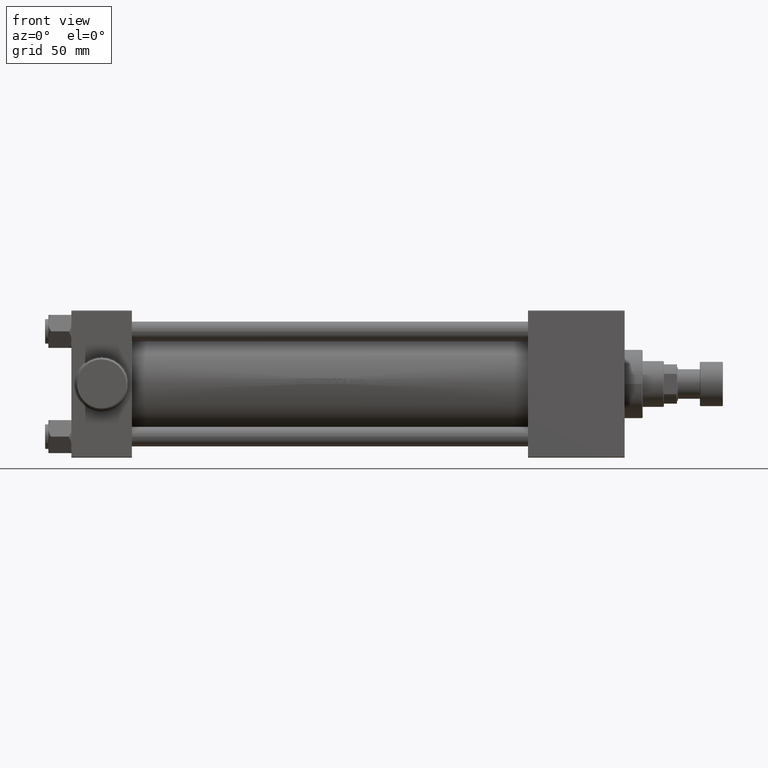
[diagram: clean part render]
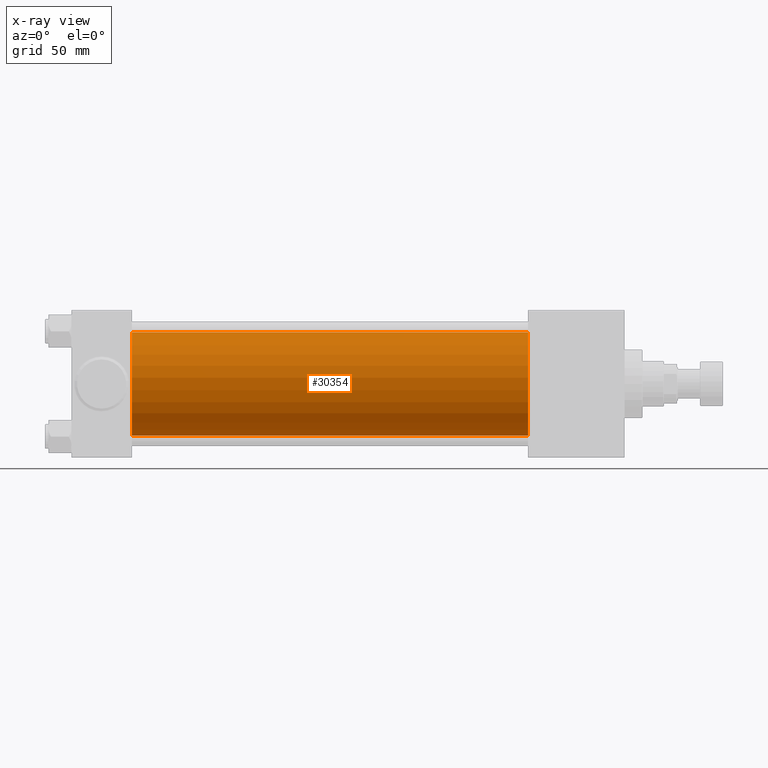
[diagram: x-ray — body ghosted, one internal face saturated and labeled with its STEP entity id]
A machine part, front view, then the same camera in x-ray: the body is ghosted and one INTERNAL B-rep face — a face not visible from any outside direction — is saturated and labeled: STEP entity #30354.
In plain terms, the highlighted cylindrical surface (partial cylindrical patch) has radius 31.5 mm, axis along (-1, -0, -0).
Its self-contained STEP definition (entity closure, byte-faithful):
#2624 = VECTOR ( 'NONE', #38403, 1000.000000000000000 ) ;
#3693 = DIRECTION ( 'NONE',  ( -1.000000000000000000, -0.000000000000000000, -0.000000000000000000 ) ) ;
#4143 = DIRECTION ( 'NONE',  ( 0.000000000000000000, 0.000000000000000000, -1.000000000000000000 ) ) ;
#4149 = DIRECTION ( 'NONE',  ( 0.000000000000000000, 0.000000000000000000, 1.000000000000000000 ) ) ;
#4294 = DIRECTION ( 'NONE',  ( 0.000000000000000000, 0.000000000000000000, -1.000000000000000000 ) ) ;
#7235 = EDGE_CURVE ( 'NONE', #17933, #11399, #39555, .T. ) ;
#7682 = CYLINDRICAL_SURFACE ( 'NONE', #45511, 31.50000000000000000 ) ;
#9329 = VERTEX_POINT ( 'NONE', #26435 ) ;
#9807 = EDGE_CURVE ( 'NONE', #9329, #11399, #15494, .T. ) ;
#10310 = VECTOR ( 'NONE', #29456, 1000.000000000000000 ) ;
#11399 = VERTEX_POINT ( 'NONE', #40673 ) ;
#11472 = LINE ( 'NONE', #32527, #10310 ) ;
#13053 = CARTESIAN_POINT ( 'NONE',  ( 278.9999999999999432, -3.469446951953614189E-15, 31.50000000000000000 ) ) ;
#14450 = EDGE_CURVE ( 'NONE', #35990, #17933, #11472, .T. ) ;
#14715 = DIRECTION ( 'NONE',  ( 1.000000000000000000, 0.000000000000000000, 0.000000000000000000 ) ) ;
#15039 = CARTESIAN_POINT ( 'NONE',  ( 278.9999999999999432, -3.469446951953614189E-15, 0.000000000000000000 ) ) ;
#15493 = CARTESIAN_POINT ( 'NONE',  ( 278.9999999999999432, -3.469446951953614189E-15, 0.000000000000000000 ) ) ;
#15494 = LINE ( 'NONE', #26610, #2624 ) ;
#17933 = VERTEX_POINT ( 'NONE', #19044 ) ;
#19044 = CARTESIAN_POINT ( 'NONE',  ( 37.00000000000000000, -3.469446951953614189E-15, 31.50000000000000000 ) ) ;
#20497 = AXIS2_PLACEMENT_3D ( 'NONE', #15493, #43851, #4143 ) ;
#25104 = ORIENTED_EDGE ( 'NONE', *, *, #9807, .T. ) ;
#25742 = EDGE_CURVE ( 'NONE', #35990, #9329, #39372, .T. ) ;
#25826 = CARTESIAN_POINT ( 'NONE',  ( 37.00000000000000000, -3.469446951953614189E-15, 0.000000000000000000 ) ) ;
#26435 = CARTESIAN_POINT ( 'NONE',  ( 278.9999999999999432, 3.881904653605483521E-16, -31.50000000000000000 ) ) ;
#26610 = CARTESIAN_POINT ( 'NONE',  ( 278.9999999999999432, 3.881904653605483521E-16, -31.50000000000000000 ) ) ;
#29456 = DIRECTION ( 'NONE',  ( -1.000000000000000000, -0.000000000000000000, -0.000000000000000000 ) ) ;
#30354 = ADVANCED_FACE ( 'NONE', ( #40085 ), #7682, .F. ) ;
#32527 = CARTESIAN_POINT ( 'NONE',  ( 278.9999999999999432, -3.469446951953614189E-15, 31.50000000000000000 ) ) ;
#33808 = EDGE_LOOP ( 'NONE', ( #34029, #25104, #35720, #34786 ) ) ;
#34029 = ORIENTED_EDGE ( 'NONE', *, *, #25742, .T. ) ;
#34786 = ORIENTED_EDGE ( 'NONE', *, *, #14450, .F. ) ;
#35720 = ORIENTED_EDGE ( 'NONE', *, *, #7235, .F. ) ;
#35990 = VERTEX_POINT ( 'NONE', #13053 ) ;
#38403 = DIRECTION ( 'NONE',  ( -1.000000000000000000, -0.000000000000000000, -0.000000000000000000 ) ) ;
#39372 = CIRCLE ( 'NONE', #20497, 31.50000000000000000 ) ;
#39555 = CIRCLE ( 'NONE', #46343, 31.50000000000000000 ) ;
#40085 = FACE_OUTER_BOUND ( 'NONE', #33808, .T. ) ;
#40673 = CARTESIAN_POINT ( 'NONE',  ( 37.00000000000000000, 3.881904653605483521E-16, -31.50000000000000000 ) ) ;
#43851 = DIRECTION ( 'NONE',  ( 1.000000000000000000, 0.000000000000000000, 0.000000000000000000 ) ) ;
#45511 = AXIS2_PLACEMENT_3D ( 'NONE', #15039, #3693, #4149 ) ;
#46343 = AXIS2_PLACEMENT_3D ( 'NONE', #25826, #14715, #4294 ) ;